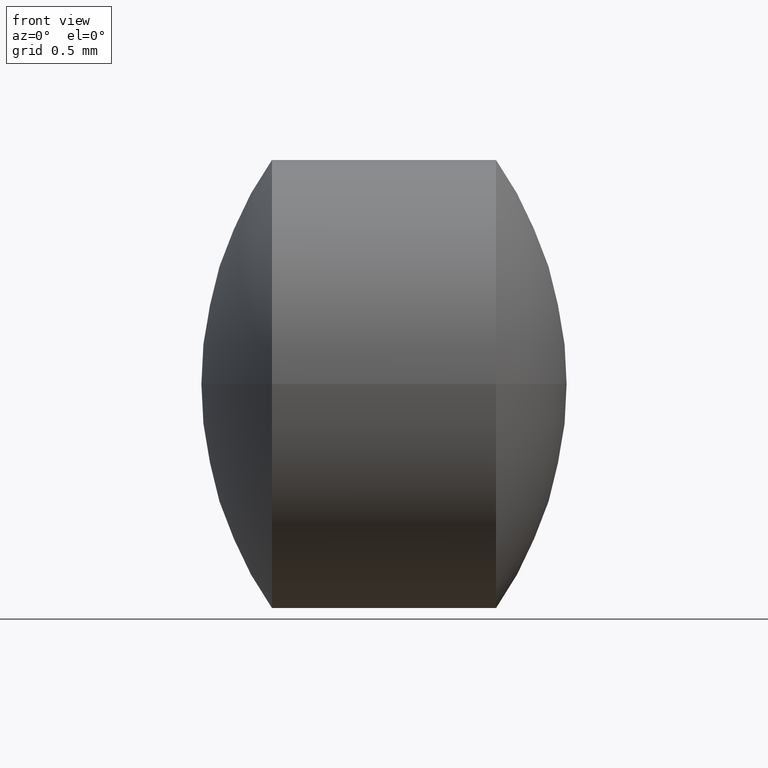
[diagram: clean part render]
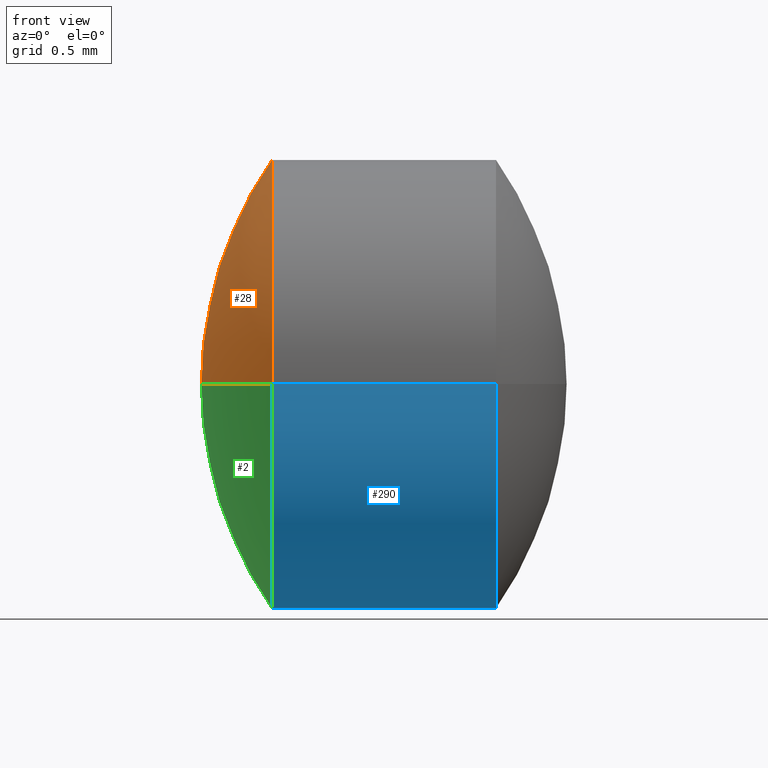
[diagram: same view with three faces highlighted in distinct colors, each labeled with its STEP entity id]
A machine part, front view with three faces highlighted in distinct colors.
Their STEP definitions:

[orange] entity #28 — the highlighted spherical surface has radius 1.7448 mm.
#10 = ORIENTED_EDGE ( 'NONE', *, *, #23, .F. ) ;
#18 = DIRECTION ( 'NONE',  ( -0.0000000000000000000, 0.0000000000000000000, -1.000000000000000000 ) ) ;
#20 = AXIS2_PLACEMENT_3D ( 'NONE', #137, #18, #198 ) ;
#23 = EDGE_CURVE ( 'NONE', #247, #275, #210, .T. ) ;
#25 = VERTEX_POINT ( 'NONE', #116 ) ;
#28 = ADVANCED_FACE ( 'NONE', ( #279 ), #284, .T. ) ;
#46 = DIRECTION ( 'NONE',  ( 1.000000000000000000, 0.0000000000000000000, 0.0000000000000000000 ) ) ;
#54 = EDGE_LOOP ( 'NONE', ( #10, #147, #102 ) ) ;
#62 = EDGE_CURVE ( 'NONE', #25, #275, #293, .T. ) ;
#64 = DIRECTION ( 'NONE',  ( 1.040834085585980900E-014, -1.000000000000000000, 0.0000000000000000000 ) ) ;
#74 = AXIS2_PLACEMENT_3D ( 'NONE', #299, #276, #156 ) ;
#102 = ORIENTED_EDGE ( 'NONE', *, *, #62, .T. ) ;
#116 = CARTESIAN_POINT ( 'NONE',  ( 6.307731793281226900, 4.828040395526875800, 0.0000000000000000000 ) ) ;
#137 = CARTESIAN_POINT ( 'NONE',  ( 7.737533380582644500, 3.828040395526780800, 0.0000000000000000000 ) ) ;
#147 = ORIENTED_EDGE ( 'NONE', *, *, #192, .T. ) ;
#156 = DIRECTION ( 'NONE',  ( 0.0000000000000000000, 1.000000000000000000, 1.224646799147353000E-016 ) ) ;
#158 = DIRECTION ( 'NONE',  ( -0.0000000000000000000, 0.0000000000000000000, 1.000000000000000000 ) ) ;
#176 = CARTESIAN_POINT ( 'NONE',  ( 5.992731793281135900, 3.828040395526763000, 0.0000000000000000000 ) ) ;
#192 = EDGE_CURVE ( 'NONE', #247, #25, #235, .T. ) ;
#198 = DIRECTION ( 'NONE',  ( -1.043935117340589500E-014, 1.000000000000000000, 0.0000000000000000000 ) ) ;
#200 = CARTESIAN_POINT ( 'NONE',  ( 7.737533380582644500, 3.828040395526780800, 0.0000000000000000000 ) ) ;
#205 = CARTESIAN_POINT ( 'NONE',  ( 6.307731793281237600, 3.828040395526765700, 0.0000000000000000000 ) ) ;
#210 = CIRCLE ( 'NONE', #74, 1.744801587301508800 ) ;
#235 = CIRCLE ( 'NONE', #283, 1.000000000000099300 ) ;
#247 = VERTEX_POINT ( 'NONE', #297 ) ;
#260 = DIRECTION ( 'NONE',  ( -1.000000000000000000, -1.026130654988835600E-014, -0.0000000000000000000 ) ) ;
#267 = AXIS2_PLACEMENT_3D ( 'NONE', #200, #158, #46 ) ;
#275 = VERTEX_POINT ( 'NONE', #176 ) ;
#276 = DIRECTION ( 'NONE',  ( -1.256647622139054500E-030, 1.224646799147353200E-016, -1.000000000000000000 ) ) ;
#279 = FACE_OUTER_BOUND ( 'NONE', #54, .T. ) ;
#283 = AXIS2_PLACEMENT_3D ( 'NONE', #205, #260, #64 ) ;
#284 = SPHERICAL_SURFACE ( 'NONE', #20, 1.744801587301508400 ) ;
#293 = CIRCLE ( 'NONE', #267, 1.744801587301508400 ) ;
#297 = CARTESIAN_POINT ( 'NONE',  ( 6.307731793281247300, 2.828040395526656400, -1.224646799147487300E-016 ) ) ;
#299 = CARTESIAN_POINT ( 'NONE',  ( 7.737533380582644500, 3.828040395526780800, 0.0000000000000000000 ) ) ;

[blue] entity #290 — the highlighted cylindrical surface (partial cylindrical patch) has radius 1 mm, axis along (-1, -0, -0).
#1 = AXIS2_PLACEMENT_3D ( 'NONE', #105, #130, #129 ) ;
#4 = ORIENTED_EDGE ( 'NONE', *, *, #256, .F. ) ;
#13 = CARTESIAN_POINT ( 'NONE',  ( 5.877930205979845700, 3.828040395526761700, 0.0000000000000000000 ) ) ;
#14 = CARTESIAN_POINT ( 'NONE',  ( 7.307731793281237600, 3.828040395526776300, 0.0000000000000000000 ) ) ;
#24 = LINE ( 'NONE', #272, #270 ) ;
#25 = VERTEX_POINT ( 'NONE', #116 ) ;
#40 = DIRECTION ( 'NONE',  ( 1.040834085585986300E-014, -1.000000000000000000, 0.0000000000000000000 ) ) ;
#44 = DIRECTION ( 'NONE',  ( -1.000000000000000000, -1.026130654988835600E-014, -0.0000000000000000000 ) ) ;
#50 = CIRCLE ( 'NONE', #278, 1.000000000000088800 ) ;
#60 = ORIENTED_EDGE ( 'NONE', *, *, #303, .F. ) ;
#84 = FACE_OUTER_BOUND ( 'NONE', #181, .T. ) ;
#85 = CARTESIAN_POINT ( 'NONE',  ( 5.877930205979836000, 4.828040395526855400, 1.224646799147468600E-016 ) ) ;
#92 = LINE ( 'NONE', #85, #126 ) ;
#105 = CARTESIAN_POINT ( 'NONE',  ( 6.307731793281237600, 3.828040395526765700, 0.0000000000000000000 ) ) ;
#106 = AXIS2_PLACEMENT_3D ( 'NONE', #13, #250, #40 ) ;
#108 = CARTESIAN_POINT ( 'NONE',  ( 7.307731793281226900, 4.828040395526865100, 1.224646799147462700E-016 ) ) ;
#116 = CARTESIAN_POINT ( 'NONE',  ( 6.307731793281226900, 4.828040395526875800, 0.0000000000000000000 ) ) ;
#126 = VECTOR ( 'NONE', #220, 1000.000000000000000 ) ;
#127 = ORIENTED_EDGE ( 'NONE', *, *, #199, .T. ) ;
#129 = DIRECTION ( 'NONE',  ( 1.040834085585980900E-014, -1.000000000000000000, 0.0000000000000000000 ) ) ;
#130 = DIRECTION ( 'NONE',  ( -1.000000000000000000, -1.026130654988835600E-014, -0.0000000000000000000 ) ) ;
#155 = DIRECTION ( 'NONE',  ( -1.000000000000000000, -1.026130654988835600E-014, -0.0000000000000000000 ) ) ;
#181 = EDGE_LOOP ( 'NONE', ( #60, #127, #231, #4 ) ) ;
#193 = CIRCLE ( 'NONE', #1, 1.000000000000099300 ) ;
#194 = CARTESIAN_POINT ( 'NONE',  ( 7.307731793281247300, 2.828040395526687500, 0.0000000000000000000 ) ) ;
#197 = CYLINDRICAL_SURFACE ( 'NONE', #106, 1.000000000000094100 ) ;
#199 = EDGE_CURVE ( 'NONE', #268, #294, #50, .T. ) ;
#217 = EDGE_CURVE ( 'NONE', #294, #247, #24, .T. ) ;
#220 = DIRECTION ( 'NONE',  ( -1.000000000000000000, -1.026130654988835600E-014, -0.0000000000000000000 ) ) ;
#231 = ORIENTED_EDGE ( 'NONE', *, *, #217, .T. ) ;
#247 = VERTEX_POINT ( 'NONE', #297 ) ;
#249 = DIRECTION ( 'NONE',  ( 1.040834085585991800E-014, -1.000000000000000000, 0.0000000000000000000 ) ) ;
#250 = DIRECTION ( 'NONE',  ( -1.000000000000000000, -1.026130654988835600E-014, -0.0000000000000000000 ) ) ;
#256 = EDGE_CURVE ( 'NONE', #25, #247, #193, .T. ) ;
#268 = VERTEX_POINT ( 'NONE', #108 ) ;
#270 = VECTOR ( 'NONE', #155, 1000.000000000000000 ) ;
#272 = CARTESIAN_POINT ( 'NONE',  ( 5.877930205979856400, 2.828040395526667500, 0.0000000000000000000 ) ) ;
#278 = AXIS2_PLACEMENT_3D ( 'NONE', #14, #44, #249 ) ;
#290 = ADVANCED_FACE ( 'NONE', ( #84 ), #197, .T. ) ;
#294 = VERTEX_POINT ( 'NONE', #194 ) ;
#297 = CARTESIAN_POINT ( 'NONE',  ( 6.307731793281247300, 2.828040395526656400, -1.224646799147487300E-016 ) ) ;
#303 = EDGE_CURVE ( 'NONE', #268, #25, #92, .T. ) ;

[green] entity #2 — the highlighted spherical surface has radius 1.7448 mm.
#1 = AXIS2_PLACEMENT_3D ( 'NONE', #105, #130, #129 ) ;
#2 = ADVANCED_FACE ( 'NONE', ( #38 ), #99, .T. ) ;
#23 = EDGE_CURVE ( 'NONE', #247, #275, #210, .T. ) ;
#25 = VERTEX_POINT ( 'NONE', #116 ) ;
#27 = DIRECTION ( 'NONE',  ( -0.0000000000000000000, 0.0000000000000000000, -1.000000000000000000 ) ) ;
#38 = FACE_OUTER_BOUND ( 'NONE', #206, .T. ) ;
#46 = DIRECTION ( 'NONE',  ( 1.000000000000000000, 0.0000000000000000000, 0.0000000000000000000 ) ) ;
#61 = ORIENTED_EDGE ( 'NONE', *, *, #62, .F. ) ;
#62 = EDGE_CURVE ( 'NONE', #25, #275, #293, .T. ) ;
#74 = AXIS2_PLACEMENT_3D ( 'NONE', #299, #276, #156 ) ;
#99 = SPHERICAL_SURFACE ( 'NONE', #208, 1.744801587301508400 ) ;
#105 = CARTESIAN_POINT ( 'NONE',  ( 6.307731793281237600, 3.828040395526765700, 0.0000000000000000000 ) ) ;
#116 = CARTESIAN_POINT ( 'NONE',  ( 6.307731793281226900, 4.828040395526875800, 0.0000000000000000000 ) ) ;
#120 = DIRECTION ( 'NONE',  ( -1.043935117340589500E-014, 1.000000000000000000, 0.0000000000000000000 ) ) ;
#129 = DIRECTION ( 'NONE',  ( 1.040834085585980900E-014, -1.000000000000000000, 0.0000000000000000000 ) ) ;
#130 = DIRECTION ( 'NONE',  ( -1.000000000000000000, -1.026130654988835600E-014, -0.0000000000000000000 ) ) ;
#156 = DIRECTION ( 'NONE',  ( 0.0000000000000000000, 1.000000000000000000, 1.224646799147353000E-016 ) ) ;
#158 = DIRECTION ( 'NONE',  ( -0.0000000000000000000, 0.0000000000000000000, 1.000000000000000000 ) ) ;
#164 = CARTESIAN_POINT ( 'NONE',  ( 7.737533380582644500, 3.828040395526780800, 0.0000000000000000000 ) ) ;
#176 = CARTESIAN_POINT ( 'NONE',  ( 5.992731793281135900, 3.828040395526763000, 0.0000000000000000000 ) ) ;
#193 = CIRCLE ( 'NONE', #1, 1.000000000000099300 ) ;
#200 = CARTESIAN_POINT ( 'NONE',  ( 7.737533380582644500, 3.828040395526780800, 0.0000000000000000000 ) ) ;
#206 = EDGE_LOOP ( 'NONE', ( #254, #246, #61 ) ) ;
#208 = AXIS2_PLACEMENT_3D ( 'NONE', #164, #27, #120 ) ;
#210 = CIRCLE ( 'NONE', #74, 1.744801587301508800 ) ;
#246 = ORIENTED_EDGE ( 'NONE', *, *, #23, .T. ) ;
#247 = VERTEX_POINT ( 'NONE', #297 ) ;
#254 = ORIENTED_EDGE ( 'NONE', *, *, #256, .T. ) ;
#256 = EDGE_CURVE ( 'NONE', #25, #247, #193, .T. ) ;
#267 = AXIS2_PLACEMENT_3D ( 'NONE', #200, #158, #46 ) ;
#275 = VERTEX_POINT ( 'NONE', #176 ) ;
#276 = DIRECTION ( 'NONE',  ( -1.256647622139054500E-030, 1.224646799147353200E-016, -1.000000000000000000 ) ) ;
#293 = CIRCLE ( 'NONE', #267, 1.744801587301508400 ) ;
#297 = CARTESIAN_POINT ( 'NONE',  ( 6.307731793281247300, 2.828040395526656400, -1.224646799147487300E-016 ) ) ;
#299 = CARTESIAN_POINT ( 'NONE',  ( 7.737533380582644500, 3.828040395526780800, 0.0000000000000000000 ) ) ;